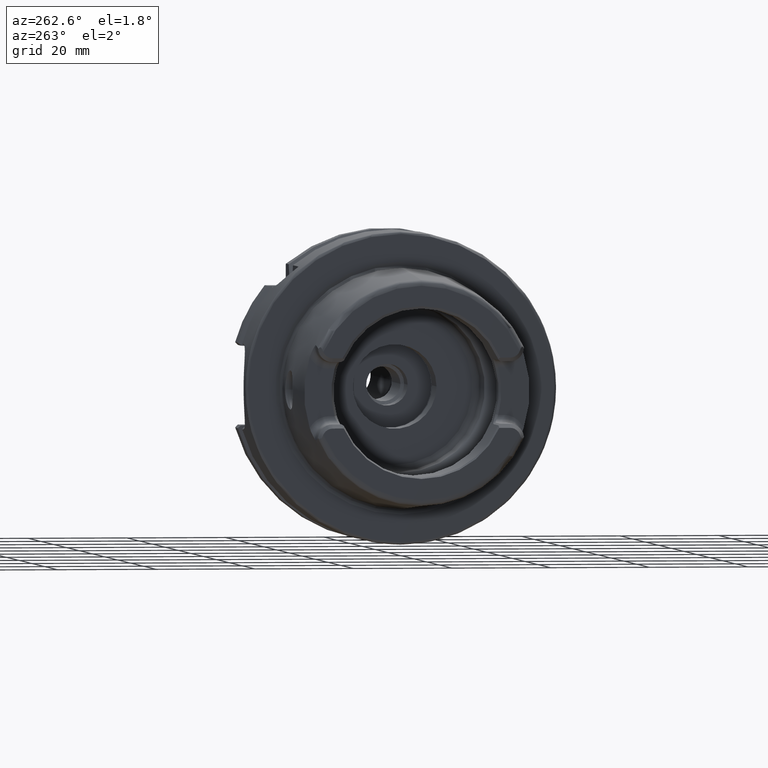
[diagram: clean part render]
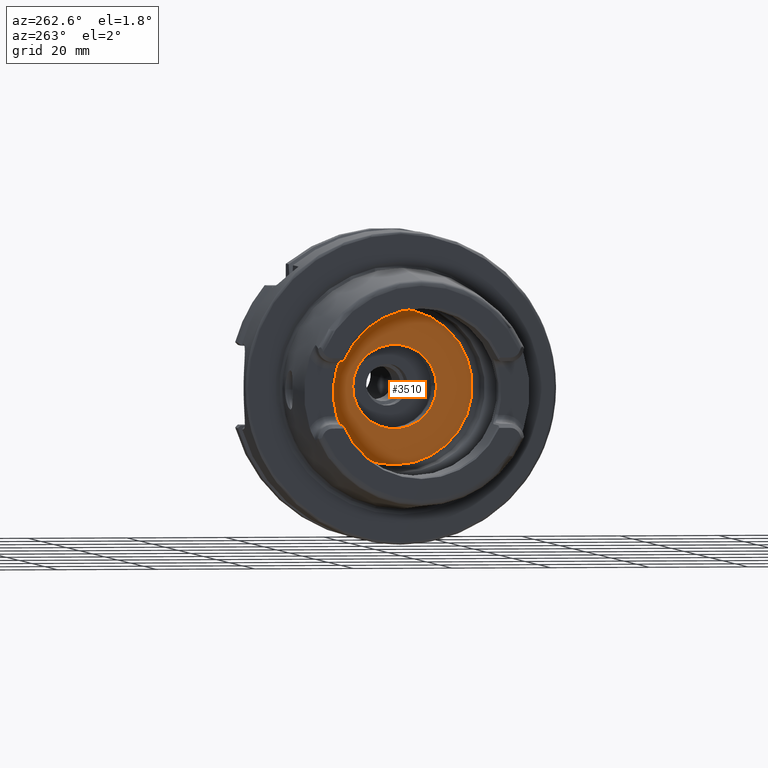
[diagram: same view with one face highlighted and labeled with its STEP entity id]
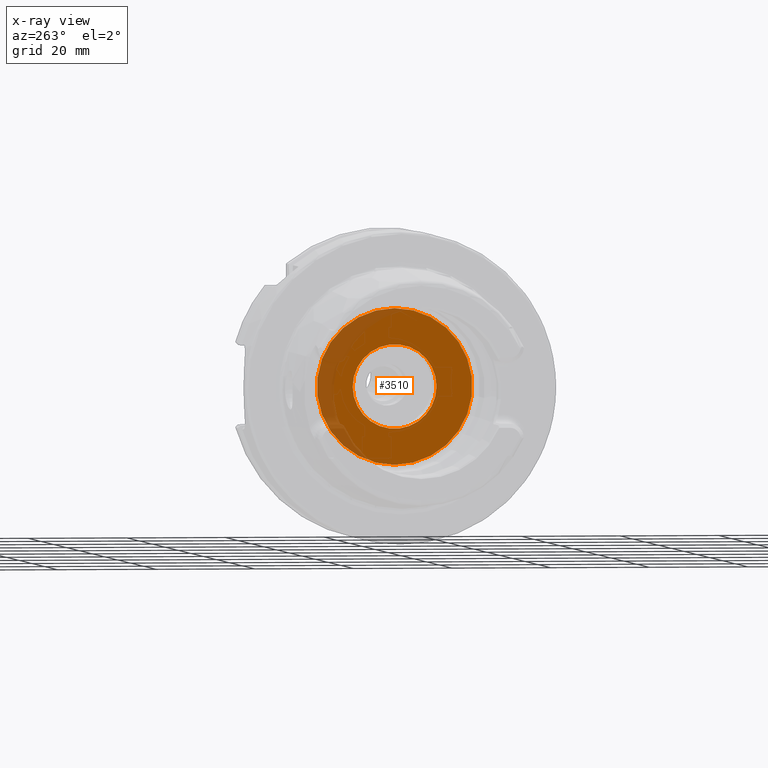
[diagram: x-ray of the same camera — body ghosted, the highlighted face saturated]
A machine part, auxiliary view. The second image highlights one B-rep face of the part: STEP entity #3510.
The next image is the same camera in x-ray: the body ghosted, the highlighted face saturated — about 20% of this face is hidden behind the body in this view.
In plain terms, the highlighted planar face has unit normal (1, 0, 0).
Its self-contained STEP definition (entity closure, byte-faithful):
#338=CARTESIAN_POINT('',(1.E1,0.E0,0.E0));
#339=DIRECTION('',(-1.E0,0.E0,0.E0));
#340=DIRECTION('',(0.E0,0.E0,-1.E0));
#341=AXIS2_PLACEMENT_3D('',#338,#339,#340);
#348=CARTESIAN_POINT('',(1.E1,0.E0,0.E0));
#349=DIRECTION('',(1.E0,0.E0,0.E0));
#350=DIRECTION('',(0.E0,0.E0,-1.E0));
#351=AXIS2_PLACEMENT_3D('',#348,#349,#350);
#353=CARTESIAN_POINT('',(1.E1,0.E0,0.E0));
#354=DIRECTION('',(-1.E0,0.E0,0.E0));
#355=DIRECTION('',(0.E0,1.E0,0.E0));
#356=AXIS2_PLACEMENT_3D('',#353,#354,#355);
#358=CARTESIAN_POINT('',(1.E1,0.E0,0.E0));
#359=DIRECTION('',(-1.E0,0.E0,0.E0));
#360=DIRECTION('',(0.E0,-1.E0,0.E0));
#361=AXIS2_PLACEMENT_3D('',#358,#359,#360);
#2735=CARTESIAN_POINT('',(1.E1,0.E0,-1.575E1));
#2736=CARTESIAN_POINT('',(1.E1,0.E0,1.575E1));
#2737=VERTEX_POINT('',#2735);
#2738=VERTEX_POINT('',#2736);
#2739=CARTESIAN_POINT('',(1.E1,8.5E0,0.E0));
#2740=CARTESIAN_POINT('',(1.E1,-8.5E0,0.E0));
#2741=VERTEX_POINT('',#2739);
#2742=VERTEX_POINT('',#2740);
#3495=CARTESIAN_POINT('',(1.E1,0.E0,0.E0));
#3496=DIRECTION('',(1.E0,0.E0,0.E0));
#3497=DIRECTION('',(0.E0,0.E0,1.E0));
#3498=AXIS2_PLACEMENT_3D('',#3495,#3496,#3497);
#3499=PLANE('',#3498);
#3500=ORIENTED_EDGE('',*,*,#3475,.F.);
#3501=ORIENTED_EDGE('',*,*,#3489,.T.);
#3502=EDGE_LOOP('',(#3500,#3501));
#3503=FACE_OUTER_BOUND('',#3502,.F.);
#3505=ORIENTED_EDGE('',*,*,#3504,.T.);
#3507=ORIENTED_EDGE('',*,*,#3506,.T.);
#3508=EDGE_LOOP('',(#3505,#3507));
#3509=FACE_BOUND('',#3508,.F.);
#3510=ADVANCED_FACE('',(#3503,#3509),#3499,.F.);
#342=CIRCLE('',#341,1.575E1);
#352=CIRCLE('',#351,1.575E1);
#357=CIRCLE('',#356,8.5E0);
#362=CIRCLE('',#361,8.5E0);
#3475=EDGE_CURVE('',#2737,#2738,#342,.T.);
#3489=EDGE_CURVE('',#2737,#2738,#352,.T.);
#3504=EDGE_CURVE('',#2741,#2742,#357,.T.);
#3506=EDGE_CURVE('',#2742,#2741,#362,.T.);